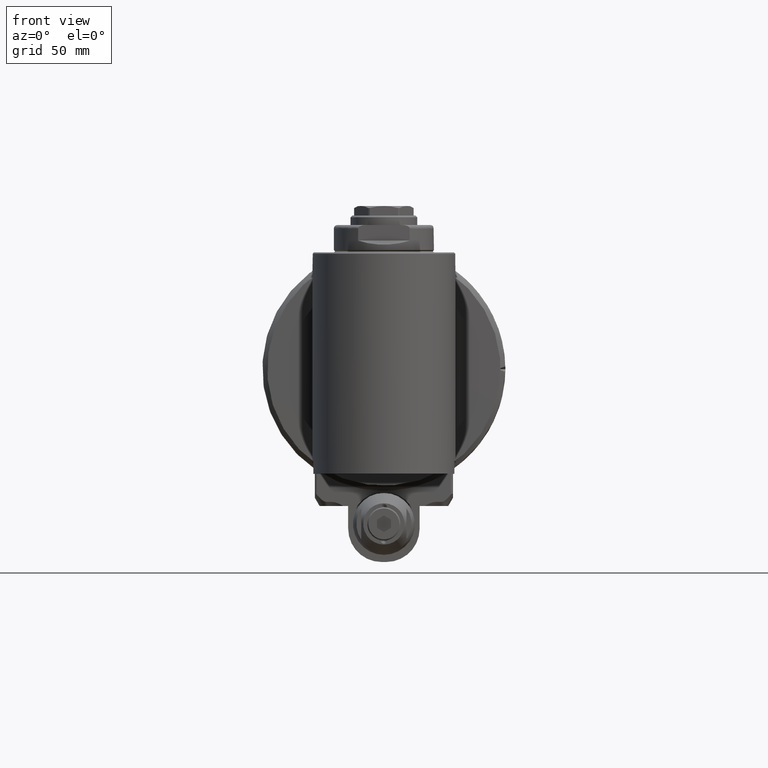
[diagram: clean part render]
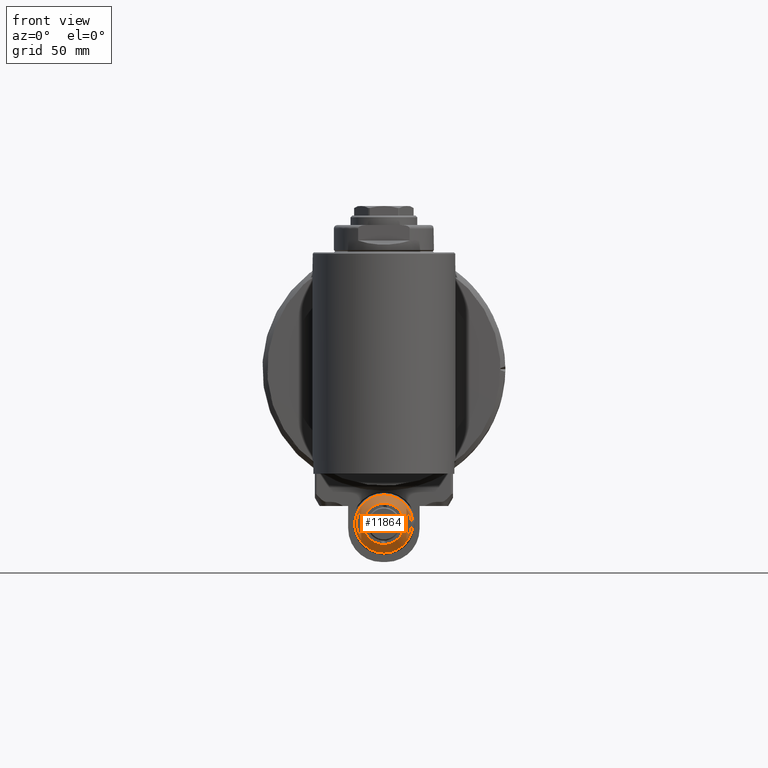
[diagram: same view with one face highlighted and labeled with its STEP entity id]
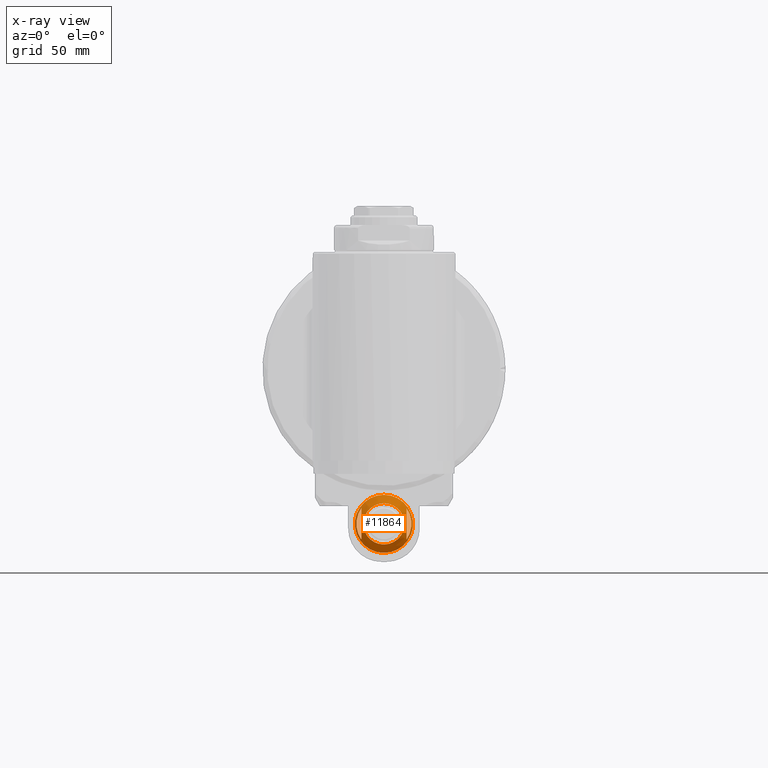
[diagram: x-ray of the same camera — body ghosted, the highlighted face saturated]
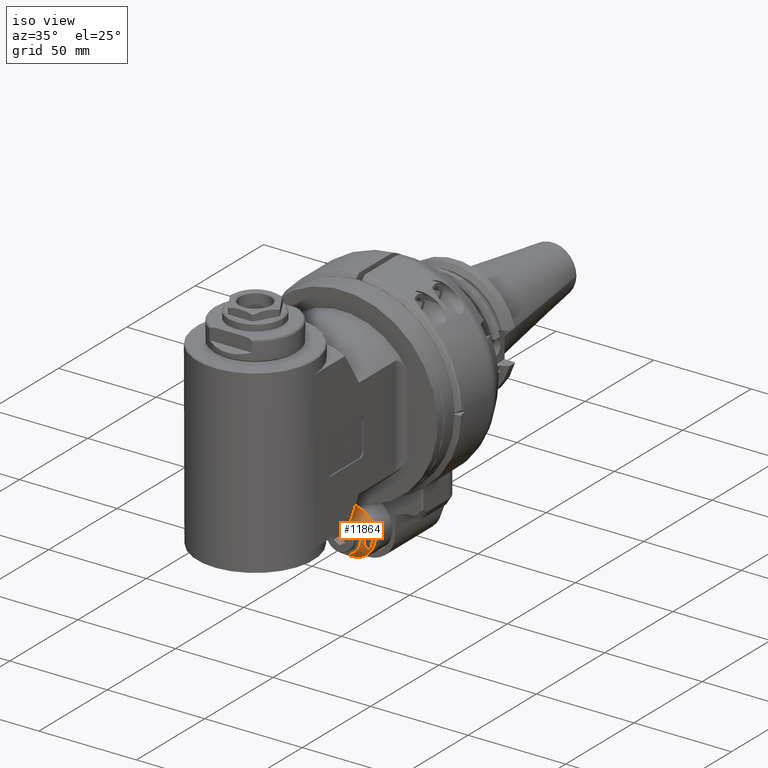
[diagram: same view with one face highlighted and labeled with its STEP entity id]
A machine part, front view. The second image highlights one B-rep face of the part: STEP entity #11864.
The next image is the same camera in x-ray: the body ghosted, the highlighted face saturated — about 0% of this face is hidden behind the body in this view.
A second angle (iso view) of the same face is appended — the face is thin or edge-on in the first view.
In plain terms, the highlighted conical surface has half-angle 30 deg.
Its self-contained STEP definition (entity closure, byte-faithful):
#415=CONICAL_SURFACE('',#13199,10.43301270189,0.523598775598299);
#528=FACE_BOUND('',#2333,.T.);
#529=FACE_BOUND('',#2334,.T.);
#671=(
BOUNDED_CURVE()
B_SPLINE_CURVE(2,(#20729,#20730,#20731),.UNSPECIFIED.,.F.,.F.)
B_SPLINE_CURVE_WITH_KNOTS((3,3),(0.189404420043379,1.86056953726613),
 .UNSPECIFIED.)
CURVE()
GEOMETRIC_REPRESENTATION_ITEM()
RATIONAL_B_SPLINE_CURVE((1.05779076199289,1.2867884687326,1.05779076199332))
REPRESENTATION_ITEM('')
);
#672=(
BOUNDED_CURVE()
B_SPLINE_CURVE(2,(#20735,#20736,#20737),.UNSPECIFIED.,.F.,.F.)
B_SPLINE_CURVE_WITH_KNOTS((3,3),(0.189404420043379,1.86056953726613),
 .UNSPECIFIED.)
CURVE()
GEOMETRIC_REPRESENTATION_ITEM()
RATIONAL_B_SPLINE_CURVE((1.05779076199289,1.2867884687326,1.05779076199332))
REPRESENTATION_ITEM('')
);
#1519=FACE_OUTER_BOUND('',#2332,.T.);
#2332=EDGE_LOOP('',(#10245,#10246,#10247,#10248));
#2333=EDGE_LOOP('',(#10249,#10250));
#2334=EDGE_LOOP('',(#10251,#10252));
#3179=LINE('',#20724,#3954);
#3954=VECTOR('',#16326,10.43301270189);
#4629=CIRCLE('',#13198,12.19615242271);
#4630=CIRCLE('',#13200,8.669872981078);
#4631=CIRCLE('',#13201,11.55662432703);
#4632=CIRCLE('',#13202,11.55662432703);
#5683=VERTEX_POINT('',#20719);
#5684=VERTEX_POINT('',#20723);
#5685=VERTEX_POINT('',#20726);
#5686=VERTEX_POINT('',#20727);
#5687=VERTEX_POINT('',#20732);
#5688=VERTEX_POINT('',#20733);
#7252=EDGE_CURVE('',#5683,#5683,#4629,.T.);
#7253=EDGE_CURVE('',#5683,#5684,#3179,.T.);
#7254=EDGE_CURVE('',#5684,#5684,#4630,.T.);
#7255=EDGE_CURVE('',#5685,#5686,#4631,.T.);
#7256=EDGE_CURVE('',#5685,#5686,#671,.T.);
#7257=EDGE_CURVE('',#5687,#5688,#4632,.T.);
#7258=EDGE_CURVE('',#5687,#5688,#672,.T.);
#10245=ORIENTED_EDGE('',*,*,#7252,.F.);
#10246=ORIENTED_EDGE('',*,*,#7253,.T.);
#10247=ORIENTED_EDGE('',*,*,#7254,.F.);
#10248=ORIENTED_EDGE('',*,*,#7253,.F.);
#10249=ORIENTED_EDGE('',*,*,#7255,.F.);
#10250=ORIENTED_EDGE('',*,*,#7256,.T.);
#10251=ORIENTED_EDGE('',*,*,#7257,.F.);
#10252=ORIENTED_EDGE('',*,*,#7258,.T.);
#11864=ADVANCED_FACE('',(#1519,#528,#529),#415,.T.);
#13198=AXIS2_PLACEMENT_3D('',#20721,#16322,#16323);
#13199=AXIS2_PLACEMENT_3D('',#20722,#16324,#16325);
#13200=AXIS2_PLACEMENT_3D('',#20725,#16327,#16328);
#13201=AXIS2_PLACEMENT_3D('',#20728,#16329,#16330);
#13202=AXIS2_PLACEMENT_3D('',#20734,#16331,#16332);
#16322=DIRECTION('center_axis',(0.,1.,0.));
#16323=DIRECTION('ref_axis',(0.,0.,1.));
#16324=DIRECTION('center_axis',(0.,1.,0.));
#16325=DIRECTION('ref_axis',(0.,0.,1.));
#16326=DIRECTION('',(6.12323399573677E-17,-0.866025403784439,0.5));
#16327=DIRECTION('center_axis',(0.,-1.,0.));
#16328=DIRECTION('ref_axis',(0.,0.,-1.));
#16329=DIRECTION('center_axis',(0.,-1.,0.));
#16330=DIRECTION('ref_axis',(-0.822039354328067,0.,0.569430680536177));
#16331=DIRECTION('center_axis',(0.,-1.,0.));
#16332=DIRECTION('ref_axis',(0.822039354328035,0.,-0.569430680536224));
#20719=CARTESIAN_POINT('',(-1.4935979026385E-15,-5.392304845413,-77.19615242271));
#20721=CARTESIAN_POINT('Origin',(0.,-5.392304845413,-65.));
#20722=CARTESIAN_POINT('Origin',(0.,-8.4461524227066,-65.));
#20723=CARTESIAN_POINT('',(0.,-11.5,-73.66987298108));
#20724=CARTESIAN_POINT('',(-1.27767556108333E-15,-8.4461524227066,-75.43301270189));
#20725=CARTESIAN_POINT('Origin',(0.,-11.5,-65.));
#20726=CARTESIAN_POINT('',(-9.499999999991,-6.5,-58.41930354473));
#20727=CARTESIAN_POINT('',(-9.5,-6.5,-71.58069645524));
#20728=CARTESIAN_POINT('Origin',(0.,-6.5,-65.));
#20729=CARTESIAN_POINT('Ctrl Pts',(-9.5,-6.49999999997736,-58.419303544741));
#20730=CARTESIAN_POINT('Ctrl Pts',(-9.5,-12.9904281869852,-64.9999999999949));
#20731=CARTESIAN_POINT('Ctrl Pts',(-9.5,-6.49999999999235,-71.5806964552438));
#20732=CARTESIAN_POINT('',(9.499999999991,-6.5,-71.58069645527));
#20733=CARTESIAN_POINT('',(9.5,-6.5,-58.41930354476));
#20734=CARTESIAN_POINT('Origin',(0.,-6.5,-65.));
#20735=CARTESIAN_POINT('Ctrl Pts',(9.5,-6.49999999997736,-71.580696455259));
#20736=CARTESIAN_POINT('Ctrl Pts',(9.5,-12.9904281869851,-65.0000000000051));
#20737=CARTESIAN_POINT('Ctrl Pts',(9.5,-6.49999999999236,-58.4193035447562));